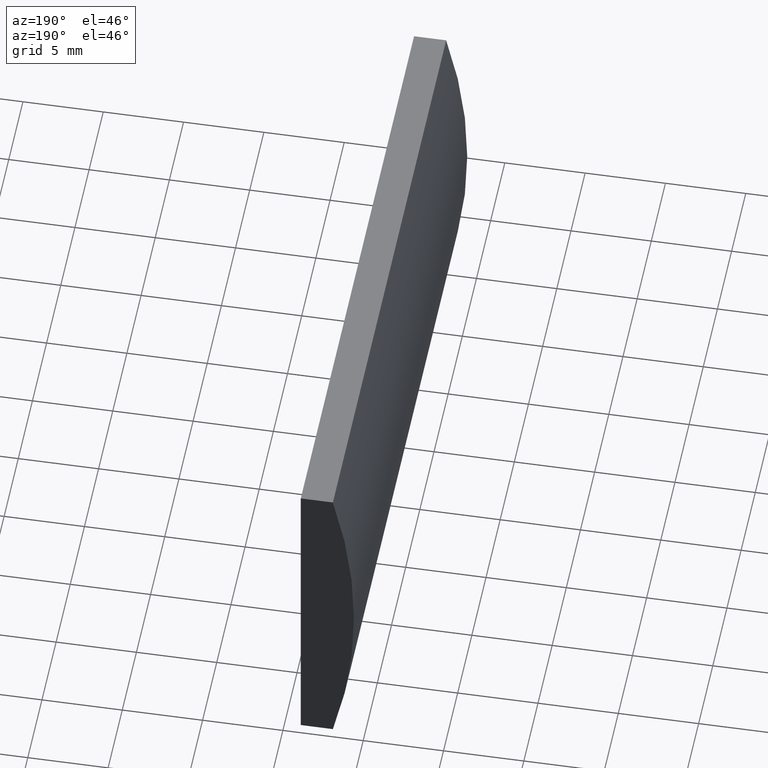
[diagram: clean part render]
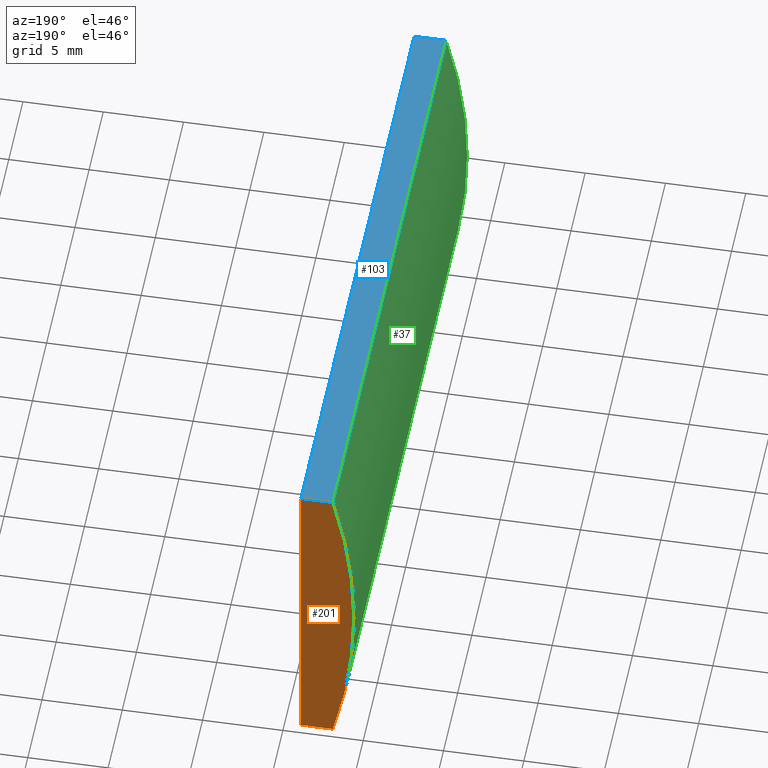
[diagram: same view with three faces highlighted in distinct colors, each labeled with its STEP entity id]
A machine part, auxiliary view with three faces highlighted in distinct colors.
Their STEP definitions:

[orange] entity #201 — the highlighted planar face has unit normal (0, 1, 0).
#1 = DIRECTION ( 'NONE',  ( 1.000000000000000000, 0.0000000000000000000, 0.0000000000000000000 ) ) ;
#3 = AXIS2_PLACEMENT_3D ( 'NONE', #183, #29, #49 ) ;
#8 = DIRECTION ( 'NONE',  ( 0.0000000000000000000, 0.0000000000000000000, 1.000000000000000000 ) ) ;
#10 = VECTOR ( 'NONE', #24, 1000.000000000000000 ) ;
#21 = ORIENTED_EDGE ( 'NONE', *, *, #46, .T. ) ;
#24 = DIRECTION ( 'NONE',  ( -1.000000000000000000, -0.0000000000000000000, -3.472053128908184100E-015 ) ) ;
#27 = VERTEX_POINT ( 'NONE', #75 ) ;
#29 = DIRECTION ( 'NONE',  ( 0.0000000000000000000, 1.000000000000000000, 0.0000000000000000000 ) ) ;
#33 = CIRCLE ( 'NONE', #177, 38.78000000000000100 ) ;
#34 = EDGE_CURVE ( 'NONE', #56, #151, #33, .T. ) ;
#35 = CARTESIAN_POINT ( 'NONE',  ( -33.11329443411465000, 40.00000000000000000, -10.00000000000000000 ) ) ;
#43 = DIRECTION ( 'NONE',  ( -3.469446951953615200E-016, -0.0000000000000000000, -1.000000000000000000 ) ) ;
#46 = EDGE_CURVE ( 'NONE', #145, #27, #74, .T. ) ;
#49 = DIRECTION ( 'NONE',  ( 0.0000000000000000000, -0.0000000000000000000, 1.000000000000000000 ) ) ;
#56 = VERTEX_POINT ( 'NONE', #35 ) ;
#64 = ORIENTED_EDGE ( 'NONE', *, *, #88, .T. ) ;
#71 = LINE ( 'NONE', #149, #109 ) ;
#74 = LINE ( 'NONE', #96, #160 ) ;
#75 = CARTESIAN_POINT ( 'NONE',  ( -31.11479566514874100, 40.00000000000000000, -9.999999999999992900 ) ) ;
#88 = EDGE_CURVE ( 'NONE', #151, #145, #71, .T. ) ;
#92 = EDGE_CURVE ( 'NONE', #27, #56, #171, .T. ) ;
#96 = CARTESIAN_POINT ( 'NONE',  ( -31.11479566514874100, 40.00000000000000000, -9.999999999999992900 ) ) ;
#109 = VECTOR ( 'NONE', #1, 1000.000000000000000 ) ;
#118 = FACE_OUTER_BOUND ( 'NONE', #188, .T. ) ;
#136 = CARTESIAN_POINT ( 'NONE',  ( 4.355204334851265500, 40.00000000000000000, 4.286263797015675000E-017 ) ) ;
#143 = ORIENTED_EDGE ( 'NONE', *, *, #92, .T. ) ;
#145 = VERTEX_POINT ( 'NONE', #172 ) ;
#149 = CARTESIAN_POINT ( 'NONE',  ( -33.11329443411465000, 40.00000000000000000, 10.00000000000000000 ) ) ;
#151 = VERTEX_POINT ( 'NONE', #170 ) ;
#160 = VECTOR ( 'NONE', #43, 1000.000000000000000 ) ;
#170 = CARTESIAN_POINT ( 'NONE',  ( -33.11329443411465000, 40.00000000000000000, 10.00000000000000000 ) ) ;
#171 = LINE ( 'NONE', #204, #10 ) ;
#172 = CARTESIAN_POINT ( 'NONE',  ( -31.11479566514873700, 40.00000000000000000, 10.00000000000000000 ) ) ;
#177 = AXIS2_PLACEMENT_3D ( 'NONE', #136, #180, #8 ) ;
#180 = DIRECTION ( 'NONE',  ( 0.0000000000000000000, 1.000000000000000000, 0.0000000000000000000 ) ) ;
#183 = CARTESIAN_POINT ( 'NONE',  ( 4.355204334851265500, 40.00000000000000000, 4.286263797015675000E-017 ) ) ;
#184 = ORIENTED_EDGE ( 'NONE', *, *, #34, .T. ) ;
#188 = EDGE_LOOP ( 'NONE', ( #184, #64, #21, #143 ) ) ;
#199 = PLANE ( 'NONE',  #3 ) ;
#201 = ADVANCED_FACE ( 'NONE', ( #118 ), #199, .T. ) ;
#204 = CARTESIAN_POINT ( 'NONE',  ( -33.11329443411465000, 40.00000000000000000, -10.00000000000000000 ) ) ;

[blue] entity #103 — the highlighted planar face has unit normal (0, 0, -1).
#1 = DIRECTION ( 'NONE',  ( 1.000000000000000000, 0.0000000000000000000, 0.0000000000000000000 ) ) ;
#14 = ORIENTED_EDGE ( 'NONE', *, *, #167, .T. ) ;
#16 = EDGE_CURVE ( 'NONE', #151, #60, #87, .T. ) ;
#17 = EDGE_LOOP ( 'NONE', ( #14, #18, #81, #91 ) ) ;
#18 = ORIENTED_EDGE ( 'NONE', *, *, #30, .F. ) ;
#20 = CARTESIAN_POINT ( 'NONE',  ( -33.11329443411465000, 0.0000000000000000000, 10.00000000000000000 ) ) ;
#26 = VERTEX_POINT ( 'NONE', #77 ) ;
#30 = EDGE_CURVE ( 'NONE', #145, #26, #53, .T. ) ;
#52 = DIRECTION ( 'NONE',  ( -0.0000000000000000000, -1.000000000000000000, -0.0000000000000000000 ) ) ;
#53 = LINE ( 'NONE', #69, #59 ) ;
#55 = DIRECTION ( 'NONE',  ( -0.0000000000000000000, -1.000000000000000000, -0.0000000000000000000 ) ) ;
#59 = VECTOR ( 'NONE', #52, 1000.000000000000000 ) ;
#60 = VERTEX_POINT ( 'NONE', #20 ) ;
#61 = DIRECTION ( 'NONE',  ( 0.0000000000000000000, 0.0000000000000000000, -1.000000000000000000 ) ) ;
#69 = CARTESIAN_POINT ( 'NONE',  ( -31.11479566514873700, 40.00000000000000000, 10.00000000000000000 ) ) ;
#71 = LINE ( 'NONE', #149, #109 ) ;
#73 = CARTESIAN_POINT ( 'NONE',  ( -33.11329443411465000, 40.00000000000000000, 10.00000000000000000 ) ) ;
#77 = CARTESIAN_POINT ( 'NONE',  ( -31.11479566514873700, 0.0000000000000000000, 10.00000000000000000 ) ) ;
#81 = ORIENTED_EDGE ( 'NONE', *, *, #88, .F. ) ;
#87 = LINE ( 'NONE', #182, #190 ) ;
#88 = EDGE_CURVE ( 'NONE', #151, #145, #71, .T. ) ;
#91 = ORIENTED_EDGE ( 'NONE', *, *, #16, .T. ) ;
#98 = DIRECTION ( 'NONE',  ( -1.000000000000000000, 0.0000000000000000000, -0.0000000000000000000 ) ) ;
#99 = FACE_OUTER_BOUND ( 'NONE', #17, .T. ) ;
#103 = ADVANCED_FACE ( 'NONE', ( #99 ), #147, .F. ) ;
#109 = VECTOR ( 'NONE', #1, 1000.000000000000000 ) ;
#134 = DIRECTION ( 'NONE',  ( 1.000000000000000000, 0.0000000000000000000, 0.0000000000000000000 ) ) ;
#145 = VERTEX_POINT ( 'NONE', #172 ) ;
#147 = PLANE ( 'NONE',  #159 ) ;
#149 = CARTESIAN_POINT ( 'NONE',  ( -33.11329443411465000, 40.00000000000000000, 10.00000000000000000 ) ) ;
#151 = VERTEX_POINT ( 'NONE', #170 ) ;
#159 = AXIS2_PLACEMENT_3D ( 'NONE', #73, #61, #98 ) ;
#165 = CARTESIAN_POINT ( 'NONE',  ( -33.11329443411465000, 0.0000000000000000000, 10.00000000000000000 ) ) ;
#167 = EDGE_CURVE ( 'NONE', #60, #26, #174, .T. ) ;
#170 = CARTESIAN_POINT ( 'NONE',  ( -33.11329443411465000, 40.00000000000000000, 10.00000000000000000 ) ) ;
#172 = CARTESIAN_POINT ( 'NONE',  ( -31.11479566514873700, 40.00000000000000000, 10.00000000000000000 ) ) ;
#174 = LINE ( 'NONE', #165, #194 ) ;
#182 = CARTESIAN_POINT ( 'NONE',  ( -33.11329443411465000, 40.00000000000000000, 10.00000000000000000 ) ) ;
#190 = VECTOR ( 'NONE', #55, 1000.000000000000000 ) ;
#194 = VECTOR ( 'NONE', #134, 1000.000000000000000 ) ;

[green] entity #37 — the highlighted cylindrical surface (partial cylindrical patch) has radius 38.78 mm, axis along (-0, -1, -0).
#4 = CARTESIAN_POINT ( 'NONE',  ( -33.11329443411465000, 0.0000000000000000000, -10.00000000000000000 ) ) ;
#8 = DIRECTION ( 'NONE',  ( 0.0000000000000000000, 0.0000000000000000000, 1.000000000000000000 ) ) ;
#16 = EDGE_CURVE ( 'NONE', #151, #60, #87, .T. ) ;
#20 = CARTESIAN_POINT ( 'NONE',  ( -33.11329443411465000, 0.0000000000000000000, 10.00000000000000000 ) ) ;
#22 = VERTEX_POINT ( 'NONE', #4 ) ;
#33 = CIRCLE ( 'NONE', #177, 38.78000000000000100 ) ;
#34 = EDGE_CURVE ( 'NONE', #56, #151, #33, .T. ) ;
#35 = CARTESIAN_POINT ( 'NONE',  ( -33.11329443411465000, 40.00000000000000000, -10.00000000000000000 ) ) ;
#37 = ADVANCED_FACE ( 'NONE', ( #85 ), #124, .T. ) ;
#39 = EDGE_CURVE ( 'NONE', #22, #60, #108, .T. ) ;
#45 = DIRECTION ( 'NONE',  ( -0.0000000000000000000, -1.000000000000000000, -0.0000000000000000000 ) ) ;
#55 = DIRECTION ( 'NONE',  ( -0.0000000000000000000, -1.000000000000000000, -0.0000000000000000000 ) ) ;
#56 = VERTEX_POINT ( 'NONE', #35 ) ;
#60 = VERTEX_POINT ( 'NONE', #20 ) ;
#65 = CARTESIAN_POINT ( 'NONE',  ( 4.355204334851265500, 40.00000000000000000, 4.286263797015675000E-017 ) ) ;
#67 = EDGE_LOOP ( 'NONE', ( #175, #198, #78, #176 ) ) ;
#78 = ORIENTED_EDGE ( 'NONE', *, *, #34, .F. ) ;
#85 = FACE_OUTER_BOUND ( 'NONE', #67, .T. ) ;
#86 = DIRECTION ( 'NONE',  ( -0.0000000000000000000, -1.000000000000000000, -0.0000000000000000000 ) ) ;
#87 = LINE ( 'NONE', #182, #190 ) ;
#93 = EDGE_CURVE ( 'NONE', #56, #22, #102, .T. ) ;
#95 = AXIS2_PLACEMENT_3D ( 'NONE', #65, #45, #163 ) ;
#102 = LINE ( 'NONE', #202, #155 ) ;
#108 = CIRCLE ( 'NONE', #133, 38.78000000000000100 ) ;
#124 = CYLINDRICAL_SURFACE ( 'NONE', #95, 38.78000000000000100 ) ;
#128 = DIRECTION ( 'NONE',  ( 0.0000000000000000000, 0.0000000000000000000, 1.000000000000000000 ) ) ;
#133 = AXIS2_PLACEMENT_3D ( 'NONE', #169, #142, #128 ) ;
#136 = CARTESIAN_POINT ( 'NONE',  ( 4.355204334851265500, 40.00000000000000000, 4.286263797015675000E-017 ) ) ;
#142 = DIRECTION ( 'NONE',  ( 0.0000000000000000000, 1.000000000000000000, 0.0000000000000000000 ) ) ;
#151 = VERTEX_POINT ( 'NONE', #170 ) ;
#155 = VECTOR ( 'NONE', #86, 1000.000000000000000 ) ;
#163 = DIRECTION ( 'NONE',  ( 0.0000000000000000000, 0.0000000000000000000, -1.000000000000000000 ) ) ;
#169 = CARTESIAN_POINT ( 'NONE',  ( 4.355204334851265500, 0.0000000000000000000, 4.286263797015675000E-017 ) ) ;
#170 = CARTESIAN_POINT ( 'NONE',  ( -33.11329443411465000, 40.00000000000000000, 10.00000000000000000 ) ) ;
#175 = ORIENTED_EDGE ( 'NONE', *, *, #39, .T. ) ;
#176 = ORIENTED_EDGE ( 'NONE', *, *, #93, .T. ) ;
#177 = AXIS2_PLACEMENT_3D ( 'NONE', #136, #180, #8 ) ;
#180 = DIRECTION ( 'NONE',  ( 0.0000000000000000000, 1.000000000000000000, 0.0000000000000000000 ) ) ;
#182 = CARTESIAN_POINT ( 'NONE',  ( -33.11329443411465000, 40.00000000000000000, 10.00000000000000000 ) ) ;
#190 = VECTOR ( 'NONE', #55, 1000.000000000000000 ) ;
#198 = ORIENTED_EDGE ( 'NONE', *, *, #16, .F. ) ;
#202 = CARTESIAN_POINT ( 'NONE',  ( -33.11329443411465000, 40.00000000000000000, -10.00000000000000000 ) ) ;